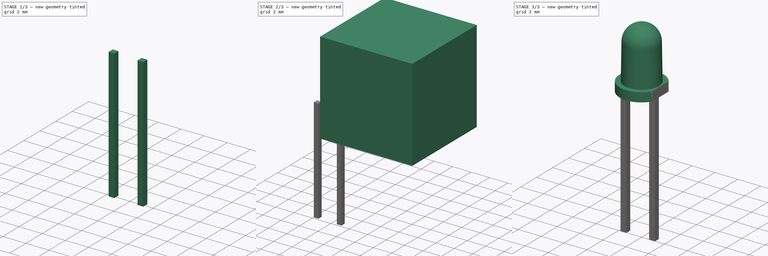
[diagram: build sequence overview — one tinted view per stage of 3, left to right]
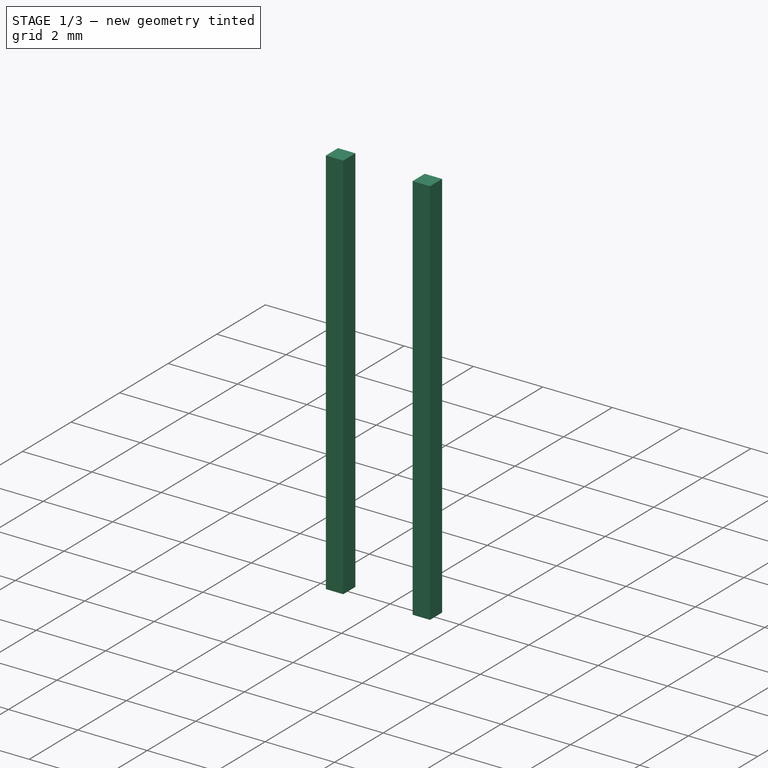
[diagram: stage 1 of 3 — iso view after this stage's code; geometry added in this stage tinted green]
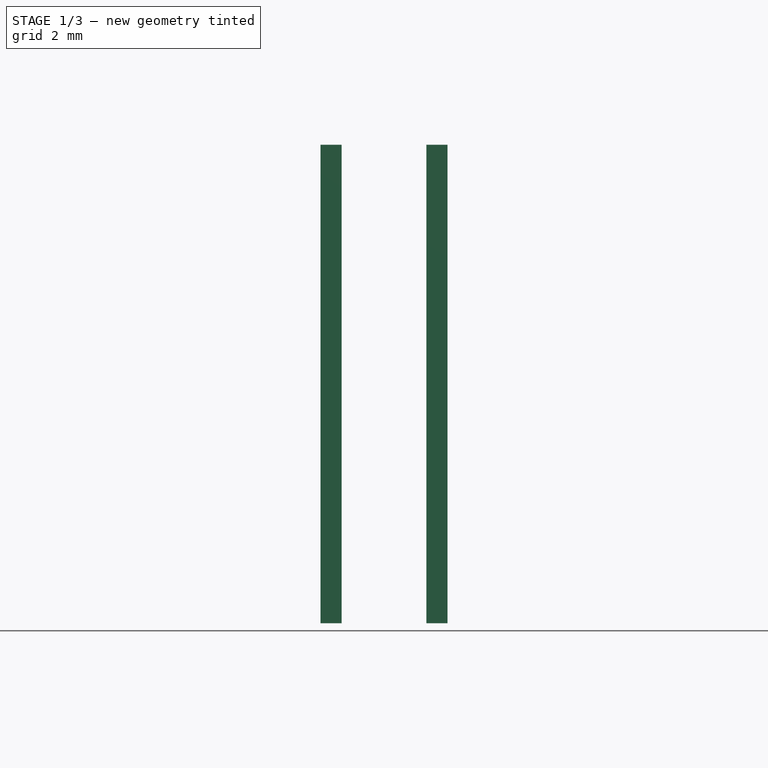
[diagram: stage 1 of 3 — front view after this stage's code; geometry added in this stage tinted green]
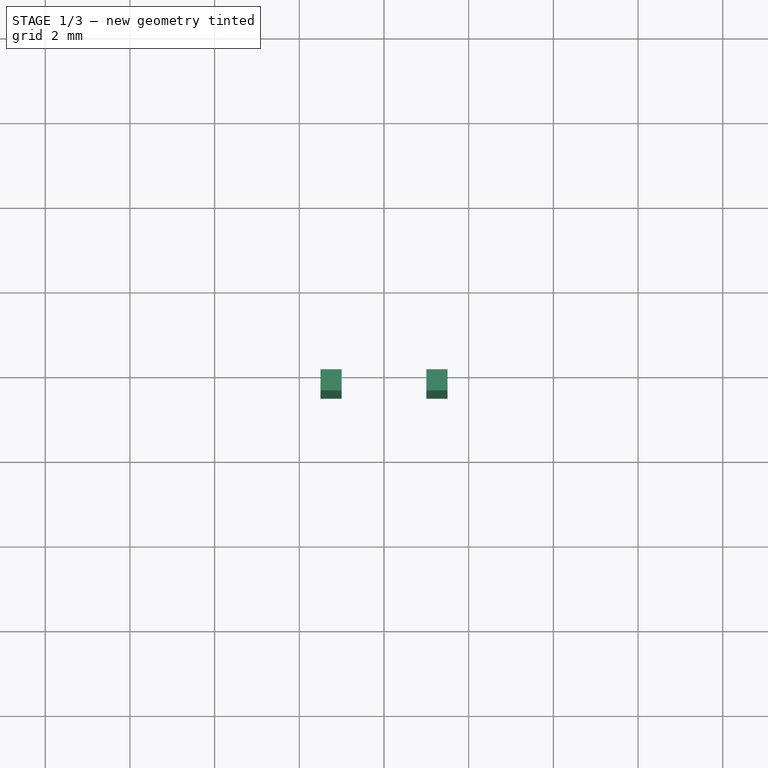
[diagram: stage 1 of 3 — top view after this stage's code; geometry added in this stage tinted green]
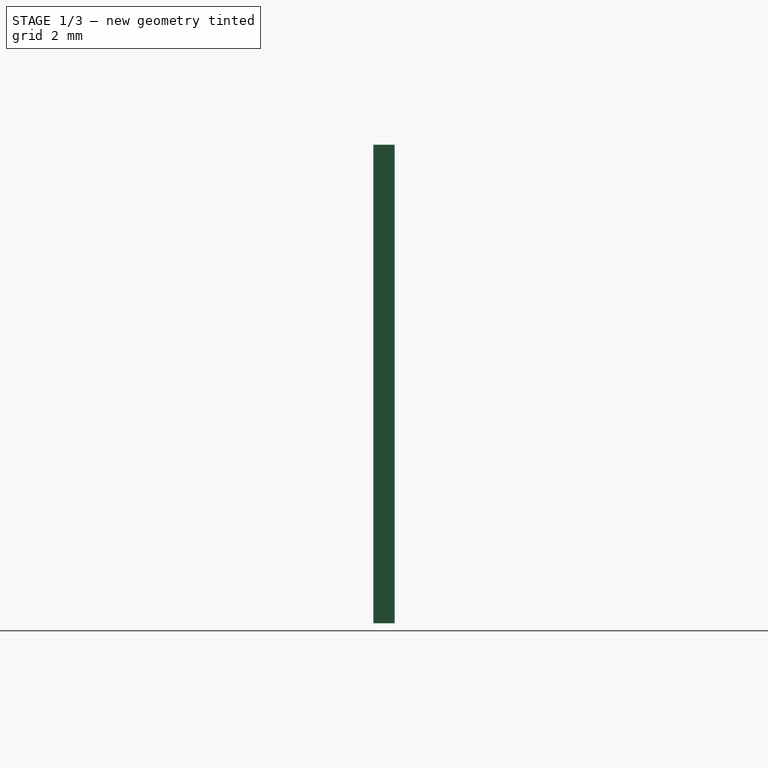
[diagram: stage 1 of 3 — right view after this stage's code; geometry added in this stage tinted green]
FCSTD DOCUMENT  (FreeCAD 0.21R33771 (Git))
Label: LED_3mm_long
License: All rights reserved
LicenseURL: https://en.wikipedia.org/wiki/All_rights_reserved
objects: Sketcher::SketchObject×3, PartDesign::Body×3, PartDesign::Pad×2, Part::Box×1, Spreadsheet::Sheet×1, PartDesign::Revolution×1, Part::Cut×1
note: 14 computed .brp shape members not serialized (recipe doc carries the construction recipe); baked Part::Feature solids carry a one-line shape summary decoded from their .brp

FEATURE [Sketcher::SketchObject] Sketch001
  FullyConstrained = true
  MapMode = 5
  Placement = pos=(0,0,0) rot=(1,0,0;1.5708rad)
  Support = -> [XZ_Plane001]
  expr: Constraints[8] = Spreadsheet.LengthCathode
  sketch-geometry (4):
    g0: LineSegment StartX=1 StartY=0 StartZ=0 EndX=1.5 EndY=0 EndZ=0
    g1: LineSegment StartX=1.5 StartY=0 StartZ=0 EndX=1.5 EndY=-11.3 EndZ=0
    g2: LineSegment StartX=1.5 StartY=-11.3 StartZ=0 EndX=1 EndY=-11.3 EndZ=0
    g3: LineSegment StartX=1 StartY=-11.3 StartZ=0 EndX=1 EndY=0 EndZ=0
  constraints (12):
    c: Coincident(g0,g1)
    c: Coincident(g1,g2)
    c: Coincident(g2,g3)
    c: Coincident(g3,g0)
    c: Horizontal(g0)
    c: Horizontal(g2)
    c: Vertical(g1)
    c: Vertical(g3)
    c: DistanceY(g1,g1) = 11.3
    c: DistanceX(g2,g2) = 0.5
    c: DistanceX(g-1,g0) = 1
    c: PointOnObject(g0,g-1)
FEATURE [PartDesign::Pad] Pad
  Direction = (0,-1,-2e-16)
  Length = 0.5
  Length2 = 10
  Placement = pos=(0,0,0) rot=(1,0,0;1.5708rad)
  Profile = -> Sketch001
  ReferenceAxis = -> Sketch001 [N_Axis]
  Type = 0
FEATURE [PartDesign::Body] Body001  label="cathode"
  Group = -> [Sketch001,Pad]
  Origin = -> Origin001
  Placement = pos=(0,0.25,0) rot=(0,0,1;0rad)
  Tip = -> Pad
FEATURE [Sketcher::SketchObject] Sketch002
  FullyConstrained = true
  MapMode = 5
  Placement = pos=(0,0,0) rot=(1,0,0;1.5708rad)
  Support = -> [XZ_Plane002]
  expr: Constraints[10] = Spreadsheet.LengthAnode
  sketch-geometry (4):
    g0: LineSegment StartX=-1.5 StartY=0 StartZ=0 EndX=-1 EndY=0 EndZ=0
    g1: LineSegment StartX=-1 StartY=0 StartZ=0 EndX=-1 EndY=-11.3 EndZ=0
    g2: LineSegment StartX=-1 StartY=-11.3 StartZ=0 EndX=-1.5 EndY=-11.3 EndZ=0
    g3: LineSegment StartX=-1.5 StartY=-11.3 StartZ=0 EndX=-1.5 EndY=0 EndZ=0
  constraints (12):
    c: Coincident(g0,g1)
    c: Coincident(g1,g2)
    c: Coincident(g2,g3)
    c: Coincident(g3,g0)
    c: Horizontal(g0)
    c: Horizontal(g2)
    c: Vertical(g1)
    c: Vertical(g3)
    c: PointOnObject(g0,g-1)
    c: DistanceX(g2,g2) = 0.5
    c: DistanceY(g3,g3) = 11.3
    c: DistanceX(g0,g-1) = 1
FEATURE [PartDesign::Pad] Pad001
  Direction = (0,-1,-2e-16)
  Length = 0.5
  Length2 = 10
  Placement = pos=(0,0,0) rot=(1,0,0;1.5708rad)
  Profile = -> Sketch002
  ReferenceAxis = -> Sketch002 [N_Axis]
  Type = 0
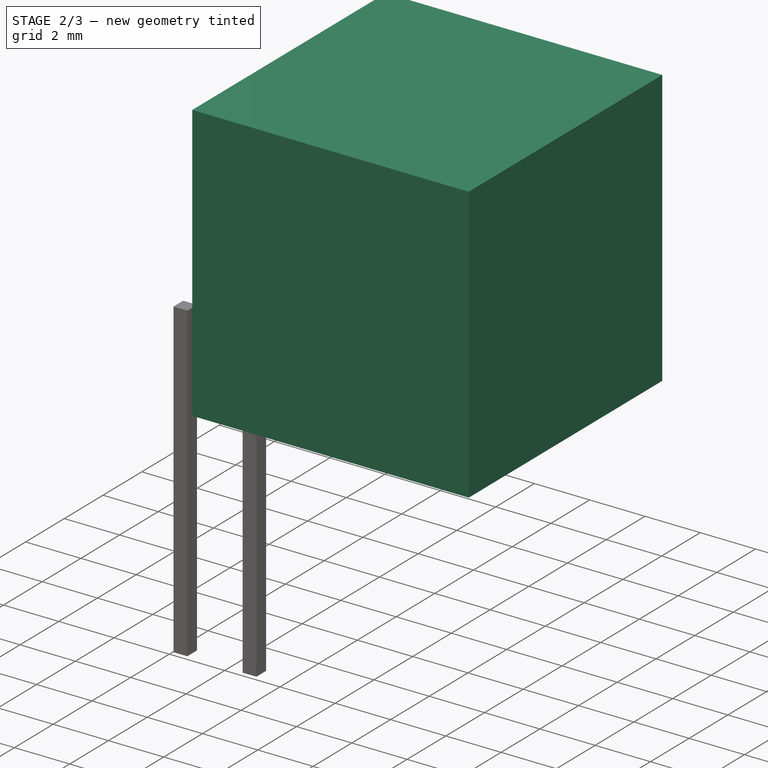
[diagram: stage 2 of 3 — iso view after this stage's code; geometry added in this stage tinted green]
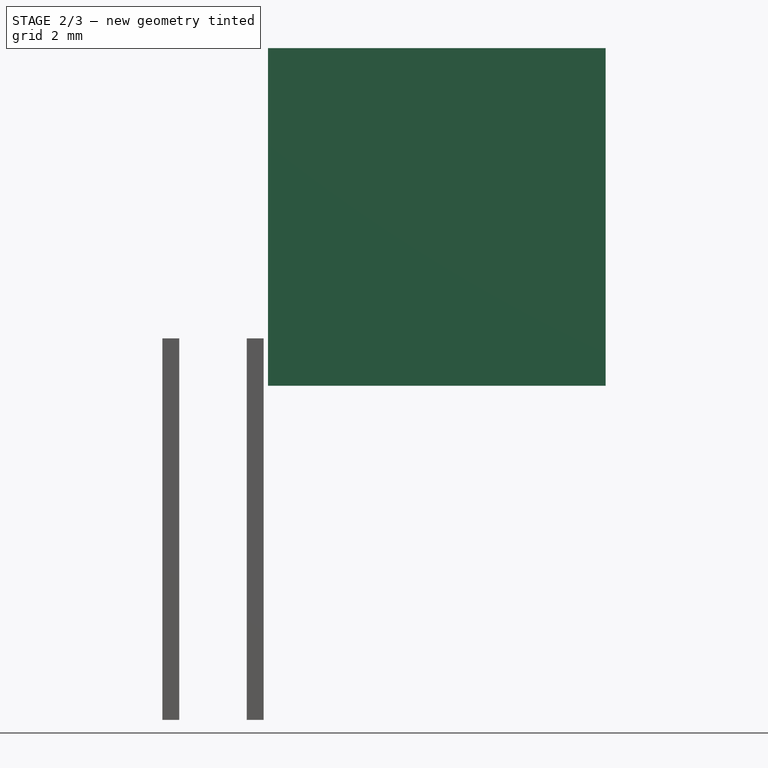
[diagram: stage 2 of 3 — front view after this stage's code; geometry added in this stage tinted green]
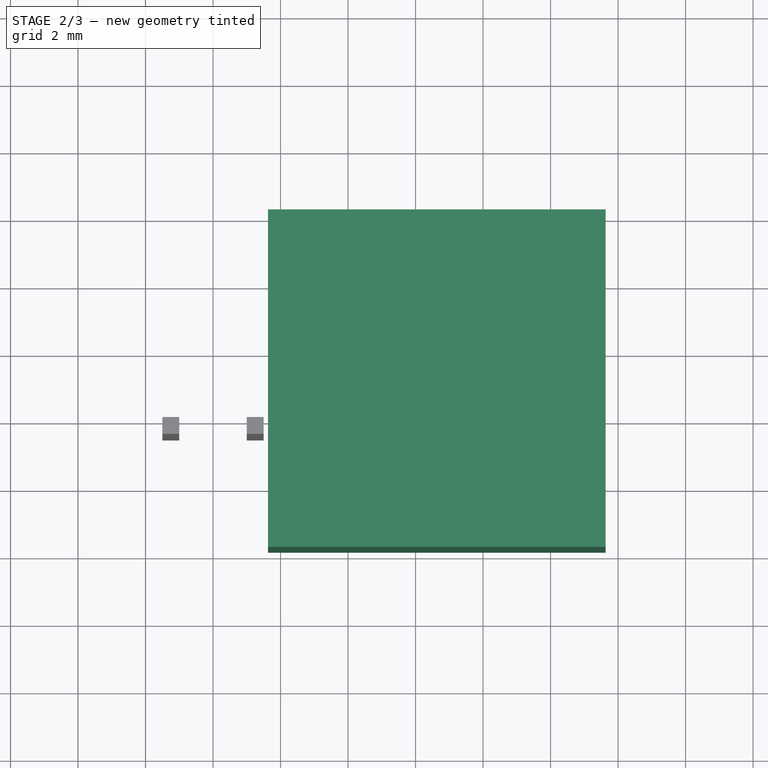
[diagram: stage 2 of 3 — top view after this stage's code; geometry added in this stage tinted green]
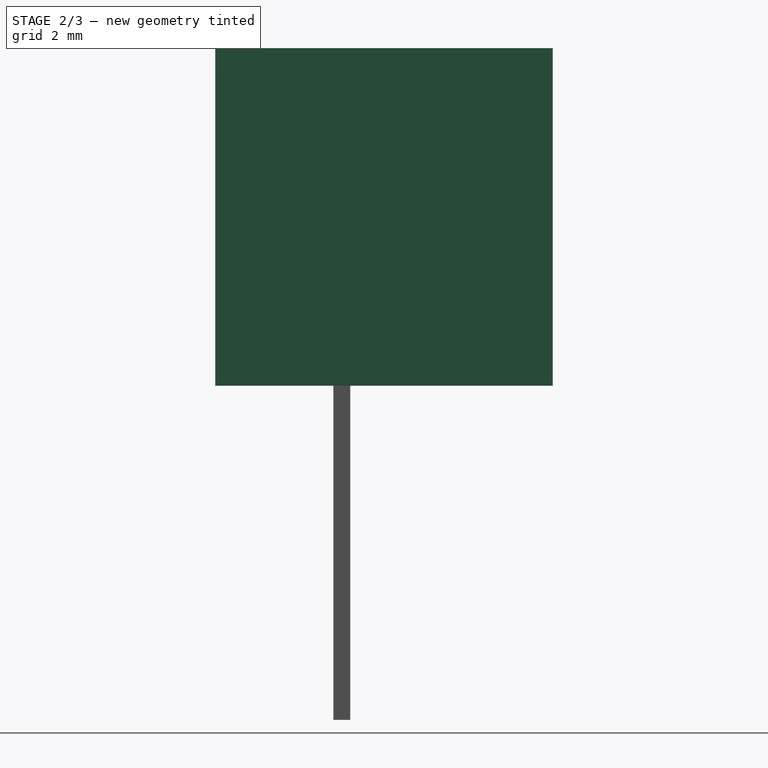
[diagram: stage 2 of 3 — right view after this stage's code; geometry added in this stage tinted green]
FEATURE [Part::Box] Box  label="Würfel"
  AttacherType = Attacher::AttachEngine3D
  Height = 10
  Length = 10
  Placement = pos=(1.63,-4,-1.4) rot=(0,0,1;0rad)
  Width = 10
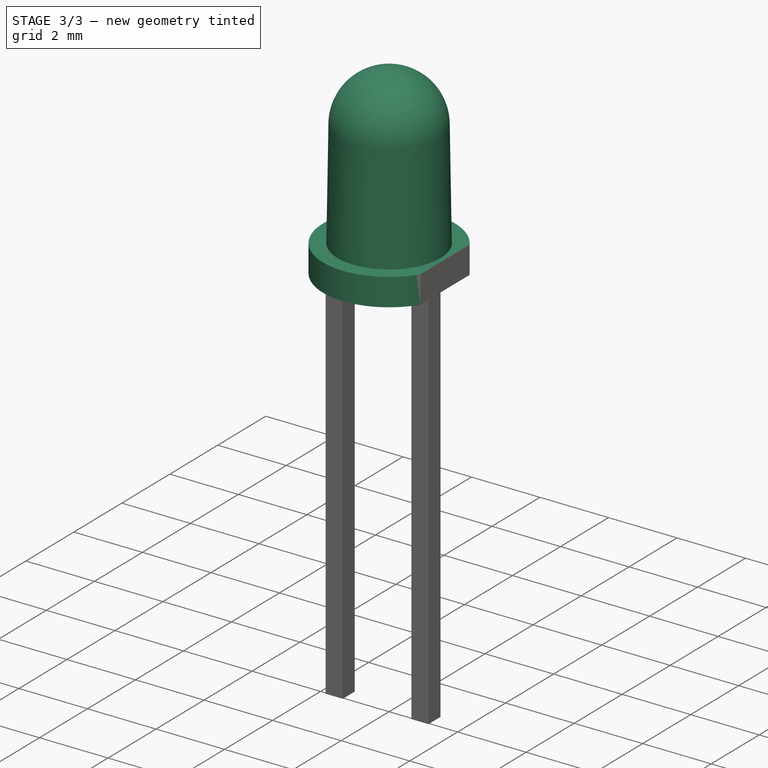
[diagram: stage 3 of 3 — iso view after this stage's code; geometry added in this stage tinted green]
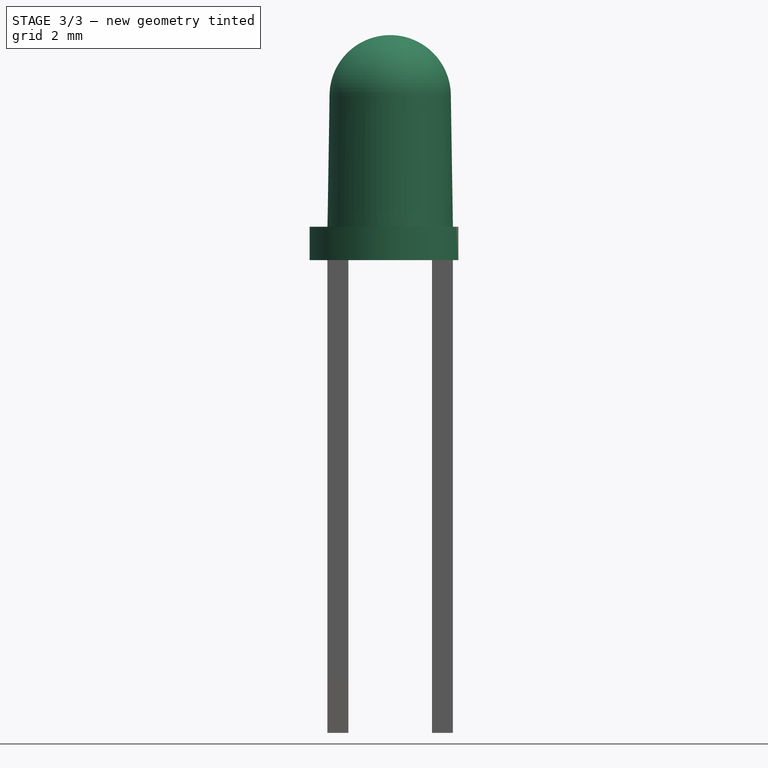
[diagram: stage 3 of 3 — front view after this stage's code; geometry added in this stage tinted green]
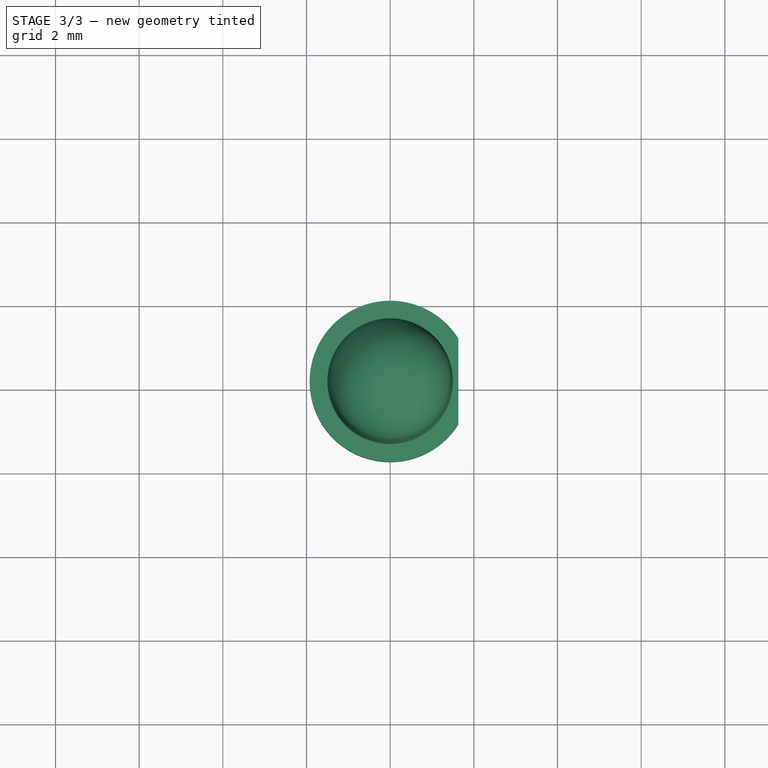
[diagram: stage 3 of 3 — top view after this stage's code; geometry added in this stage tinted green]
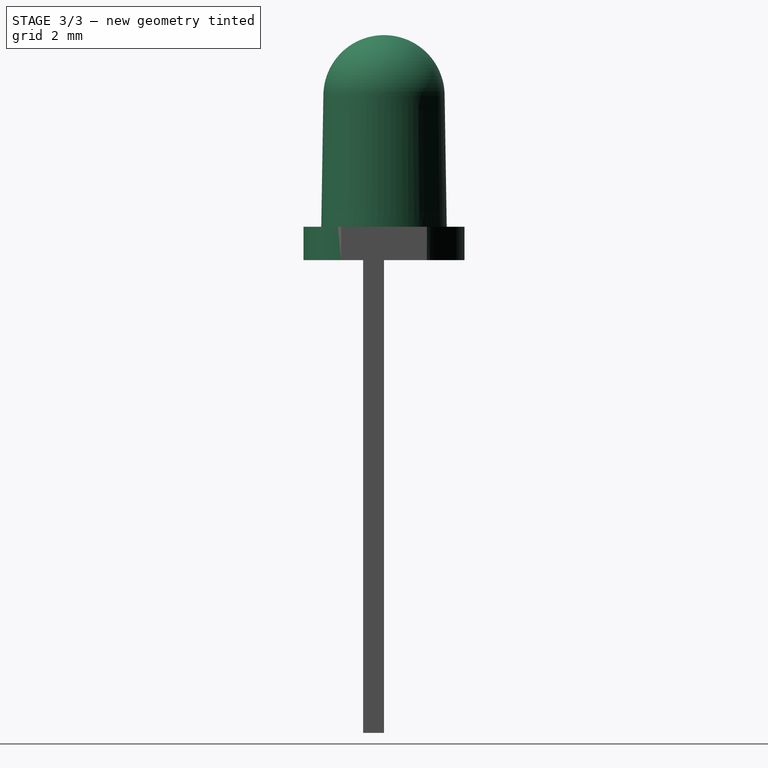
[diagram: stage 3 of 3 — right view after this stage's code; geometry added in this stage tinted green]
FEATURE [PartDesign::Body] Body002  label="anode"
  Group = -> [Sketch002,Pad001]
  Origin = -> Origin002
  Placement = pos=(0,0.25,0) rot=(0,0,1;0rad)
  Tip = -> Pad001
FEATURE [Spreadsheet::Sheet] Spreadsheet
  cells = A1='Length Anode; B1(LengthAnode)=11.3; C1=28; A2='Length Cathode; B2(LengthCathode)=11.3; C2=26.5
FEATURE [Sketcher::SketchObject] Sketch
  FullyConstrained = false
  MapMode = 5
  Placement = pos=(0,0,0) rot=(1,0,0;1.5708rad)
  Support = -> [XZ_Plane]
  sketch-geometry (6):
    g0: LineSegment StartX=4e-16 StartY=0 StartZ=0 EndX=1.925 EndY=0 EndZ=0
    g1: LineSegment StartX=1.925 StartY=0 StartZ=0 EndX=1.925 EndY=0.8 EndZ=0
    g2: LineSegment StartX=1.925 StartY=0.8 StartZ=0 EndX=1.5 EndY=0.8 EndZ=0
    g3: ArcOfCircle CenterX=0 CenterY=3.93 CenterZ=0 NormalX=0 NormalY=0 NormalZ=1 AngleXU=0 Radius=1.45 StartAngle=6.28318 EndAngle=7.85398
    g4: LineSegment StartX=1.5 StartY=0.8 StartZ=0 EndX=1.45 EndY=3.92999 EndZ=0
    g5: LineSegment StartX=4e-16 StartY=0 StartZ=0 EndX=4e-16 EndY=5.38 EndZ=0
  constraints (17):
    c: Coincident(g0,g-1)
    c: PointOnObject(g0,g-1)
    c: DistanceX(g0,g0) = 1.925
    c: Coincident(g1,g0)
    c: Vertical(g1)
    c: Coincident(g2,g1)
    c: Horizontal(g2)
    c: DistanceY(g1,g1) = 0.8
    c: DistanceX(g2,g2) = 0.425
    c: PointOnObject(g3,g-2)
    c: DistanceY(g0,g3) = 3.93
    c: Coincident(g4,g2)
    c: Coincident(g5,g0)
    c: Vertical(g5)
    c: Coincident(g3,g5)
    c: Coincident(g3,g4)
    c: Radius(g3) = 1.45
FEATURE [PartDesign::Revolution] Revolution
  Angle = 360
  Axis = (0,-2e-16,1)
  Base = (0,0,0)
  Placement = pos=(0,0,0) rot=(1,0,0;1.5708rad)
  Profile = -> Sketch
  ReferenceAxis = -> Sketch [V_Axis]
  Reversed = true
FEATURE [Part::Cut] Cut  label="led"
  Base = -> Revolution
  Tool = -> Box
FEATURE [PartDesign::Body] Body  label="Körper"
  Group = -> [Sketch]
  Origin = -> Origin
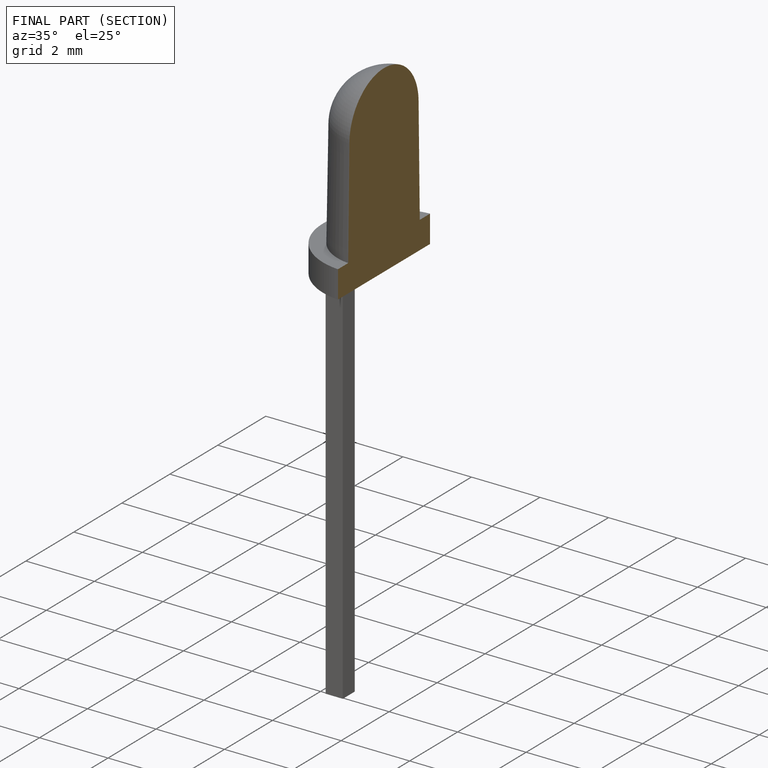
[diagram: finished part — half-section view (interior)]
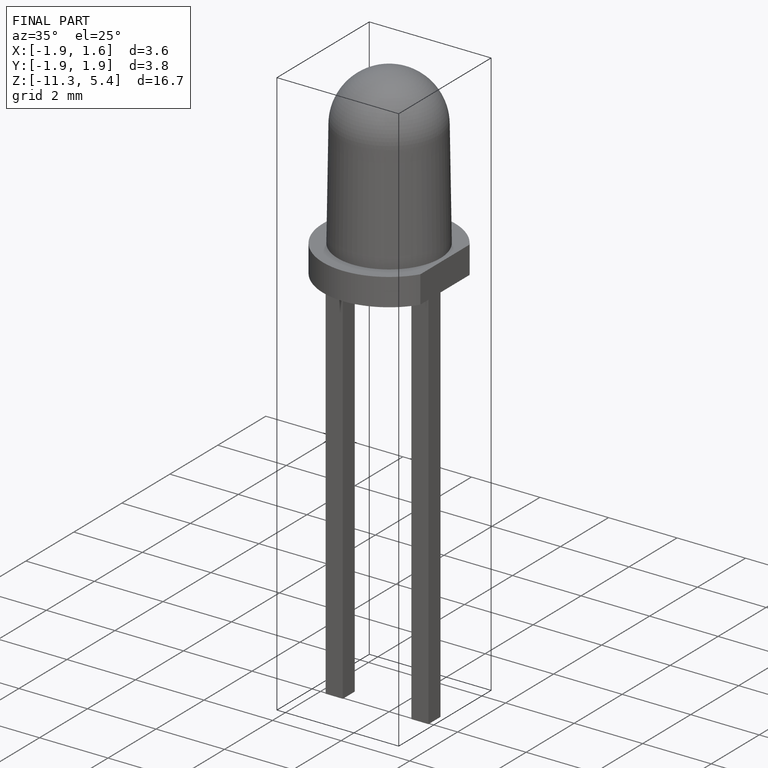
[diagram: finished part — iso view with bounding-box wireframe]
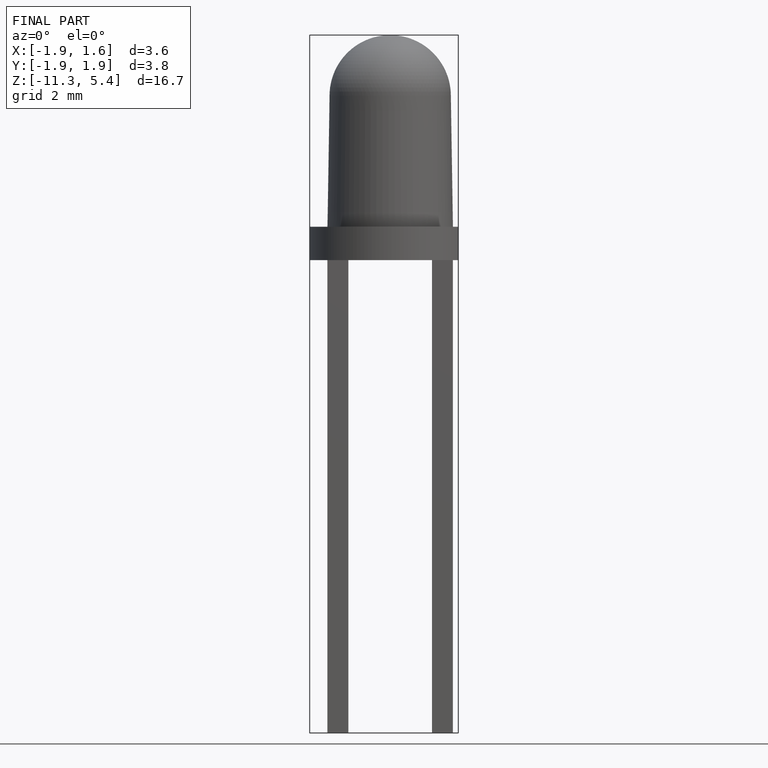
[diagram: finished part — front view with bounding-box wireframe]
